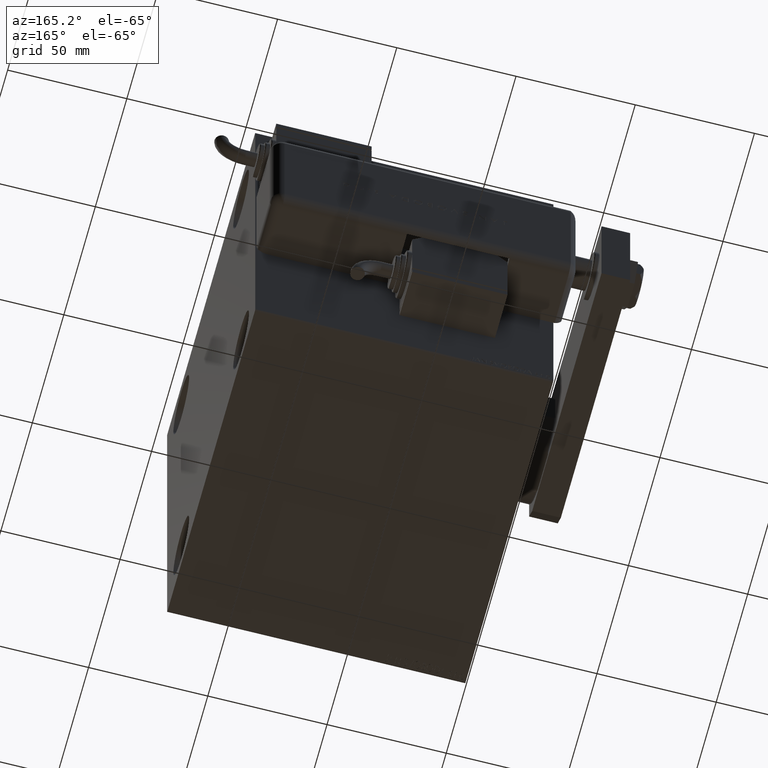
[diagram: clean part render]
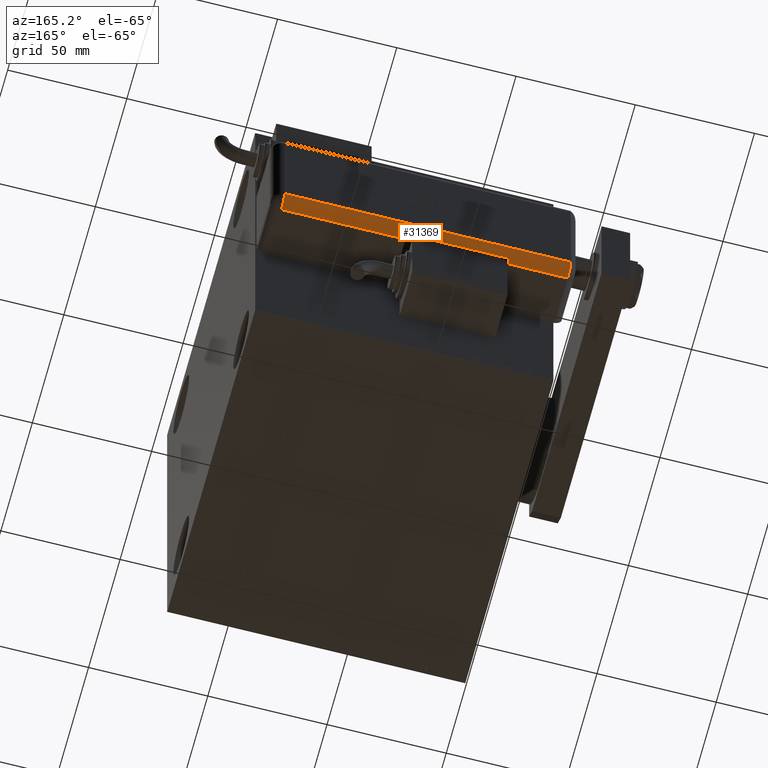
[diagram: same view with one face highlighted and labeled with its STEP entity id]
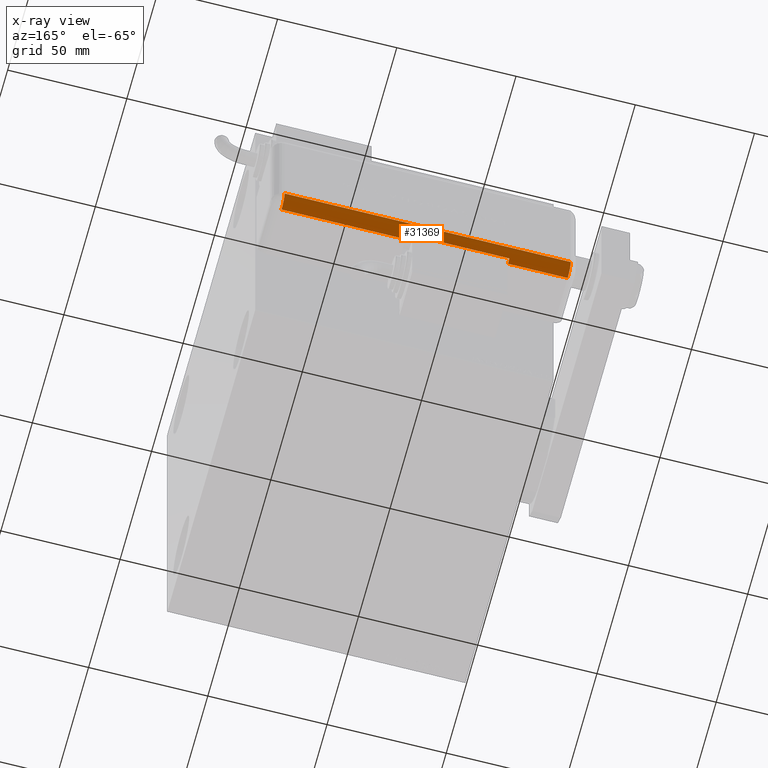
[diagram: x-ray of the same camera — body ghosted, the highlighted face saturated]
A machine part, auxiliary view. The second image highlights one B-rep face of the part: STEP entity #31369.
The next image is the same camera in x-ray: the body ghosted, the highlighted face saturated — about 0% of this face is hidden behind the body in this view.
In plain terms, the highlighted cylindrical surface (edge-blend (fillet) strip) has radius 5 mm, axis along (1, -0, -0).
Its self-contained STEP definition (entity closure, byte-faithful):
#694 = DIRECTION ( 'NONE',  ( 0.000000000000000000, 0.000000000000000000, -1.000000000000000000 ) ) ;
#963 = CARTESIAN_POINT ( 'NONE',  ( -28.99999999999999645, 20.79999999999998295, 100.0000000000000000 ) ) ;
#1087 = EDGE_CURVE ( 'NONE', #10029, #29047, #46569, .T. ) ;
#1595 = CYLINDRICAL_SURFACE ( 'NONE', #20064, 5.000000000000000888 ) ;
#1942 = DIRECTION ( 'NONE',  ( 0.000000000000000000, 0.000000000000000000, -1.000000000000000000 ) ) ;
#3087 = AXIS2_PLACEMENT_3D ( 'NONE', #36987, #46371, #4041 ) ;
#3187 = ORIENTED_EDGE ( 'NONE', *, *, #31574, .F. ) ;
#3629 = ORIENTED_EDGE ( 'NONE', *, *, #15456, .F. ) ;
#4041 = DIRECTION ( 'NONE',  ( -1.000000000000000000, 4.163336342344336238E-15, 0.000000000000000000 ) ) ;
#4349 = EDGE_CURVE ( 'NONE', #29047, #7755, #11030, .T. ) ;
#5246 = FACE_OUTER_BOUND ( 'NONE', #57059, .T. ) ;
#5325 = CARTESIAN_POINT ( 'NONE',  ( -28.99999999999999645, 20.79999999999998295, 125.0000000000000000 ) ) ;
#5756 = CARTESIAN_POINT ( 'NONE',  ( -28.48998886412872267, 22.99999999999998934, 125.0000000000000000 ) ) ;
#5791 = DIRECTION ( 'NONE',  ( -0.000000000000000000, -0.000000000000000000, 1.000000000000000000 ) ) ;
#5900 = CARTESIAN_POINT ( 'NONE',  ( -23.99999999999999645, 20.79999999999998295, 5.000000000000004441 ) ) ;
#6143 = CARTESIAN_POINT ( 'NONE',  ( -23.99999999999999645, 20.79999999999998295, 125.0000000000000000 ) ) ;
#6467 = CARTESIAN_POINT ( 'NONE',  ( -28.48998886412872267, 22.99999999999998934, 100.0000000000000000 ) ) ;
#6686 = DIRECTION ( 'NONE',  ( -1.000000000000000000, 0.000000000000000000, 0.000000000000000000 ) ) ;
#7755 = VERTEX_POINT ( 'NONE', #49925 ) ;
#10029 = VERTEX_POINT ( 'NONE', #20239 ) ;
#10334 = ORIENTED_EDGE ( 'NONE', *, *, #30082, .T. ) ;
#10633 = ORIENTED_EDGE ( 'NONE', *, *, #1087, .F. ) ;
#11030 = LINE ( 'NONE', #51845, #43803 ) ;
#14846 = DIRECTION ( 'NONE',  ( 0.000000000000000000, 0.000000000000000000, -1.000000000000000000 ) ) ;
#14949 = VECTOR ( 'NONE', #22868, 1000.000000000000000 ) ;
#15456 = EDGE_CURVE ( 'NONE', #49367, #20373, #29340, .T. ) ;
#16169 = AXIS2_PLACEMENT_3D ( 'NONE', #17007, #34236, #35418 ) ;
#17007 = CARTESIAN_POINT ( 'NONE',  ( -23.99999999999999645, 20.79999999999998295, 100.0000000000000000 ) ) ;
#20064 = AXIS2_PLACEMENT_3D ( 'NONE', #6143, #694, #42415 ) ;
#20239 = CARTESIAN_POINT ( 'NONE',  ( -28.48998886412872267, 22.99999999999998934, 57.00000000000000711 ) ) ;
#20373 = VERTEX_POINT ( 'NONE', #33075 ) ;
#21281 = VECTOR ( 'NONE', #14846, 1000.000000000000000 ) ;
#21905 = DIRECTION ( 'NONE',  ( -0.000000000000000000, -0.000000000000000000, 1.000000000000000000 ) ) ;
#22868 = DIRECTION ( 'NONE',  ( 0.000000000000000000, 0.000000000000000000, -1.000000000000000000 ) ) ;
#24336 = DIRECTION ( 'NONE',  ( -0.000000000000000000, -0.000000000000000000, 1.000000000000000000 ) ) ;
#24750 = ORIENTED_EDGE ( 'NONE', *, *, #56971, .F. ) ;
#25413 = ORIENTED_EDGE ( 'NONE', *, *, #4349, .F. ) ;
#26706 = VERTEX_POINT ( 'NONE', #963 ) ;
#27774 = CIRCLE ( 'NONE', #16169, 5.000000000000000888 ) ;
#27861 = CIRCLE ( 'NONE', #31716, 5.000000000000000888 ) ;
#28770 = CARTESIAN_POINT ( 'NONE',  ( -23.99999999999999645, 20.79999999999998295, 125.0000000000000000 ) ) ;
#29047 = VERTEX_POINT ( 'NONE', #32705 ) ;
#29340 = CIRCLE ( 'NONE', #58289, 5.000000000000000888 ) ;
#30082 = EDGE_CURVE ( 'NONE', #33601, #7755, #27861, .T. ) ;
#31298 = EDGE_CURVE ( 'NONE', #33601, #49367, #49707, .T. ) ;
#31369 = ADVANCED_FACE ( 'NONE', ( #5246 ), #1595, .T. ) ;
#31574 = EDGE_CURVE ( 'NONE', #26706, #53284, #27774, .T. ) ;
#31716 = AXIS2_PLACEMENT_3D ( 'NONE', #5900, #24336, #42779 ) ;
#32136 = CARTESIAN_POINT ( 'NONE',  ( -23.99999999999999645, 25.79999999999998295, 125.0000000000000000 ) ) ;
#32705 = CARTESIAN_POINT ( 'NONE',  ( -28.99999999999999645, 20.79999999999998295, 57.00000000000000711 ) ) ;
#32723 = CARTESIAN_POINT ( 'NONE',  ( -23.99999999999999645, 25.79999999999998295, 5.000000000000004441 ) ) ;
#33075 = CARTESIAN_POINT ( 'NONE',  ( -28.99999999999999645, 20.79999999999998295, 125.0000000000000000 ) ) ;
#33601 = VERTEX_POINT ( 'NONE', #32723 ) ;
#34236 = DIRECTION ( 'NONE',  ( 0.000000000000000000, -0.000000000000000000, -1.000000000000000000 ) ) ;
#35418 = DIRECTION ( 'NONE',  ( 1.000000000000000000, 0.000000000000000000, 0.000000000000000000 ) ) ;
#36987 = CARTESIAN_POINT ( 'NONE',  ( -23.99999999999999645, 20.79999999999998295, 57.00000000000000711 ) ) ;
#37509 = ORIENTED_EDGE ( 'NONE', *, *, #45901, .F. ) ;
#42415 = DIRECTION ( 'NONE',  ( -1.000000000000000000, 0.000000000000000000, 0.000000000000000000 ) ) ;
#42497 = LINE ( 'NONE', #5325, #14949 ) ;
#42779 = DIRECTION ( 'NONE',  ( -1.000000000000000000, 0.000000000000000000, 0.000000000000000000 ) ) ;
#43803 = VECTOR ( 'NONE', #1942, 1000.000000000000000 ) ;
#45901 = EDGE_CURVE ( 'NONE', #53284, #10029, #56256, .T. ) ;
#46371 = DIRECTION ( 'NONE',  ( -0.000000000000000000, -0.000000000000000000, 1.000000000000000000 ) ) ;
#46569 = CIRCLE ( 'NONE', #3087, 5.000000000000000888 ) ;
#49367 = VERTEX_POINT ( 'NONE', #57571 ) ;
#49707 = LINE ( 'NONE', #32136, #57692 ) ;
#49925 = CARTESIAN_POINT ( 'NONE',  ( -28.99999999999999645, 20.79999999999998295, 5.000000000000004441 ) ) ;
#51845 = CARTESIAN_POINT ( 'NONE',  ( -28.99999999999999645, 20.79999999999998295, 125.0000000000000000 ) ) ;
#53284 = VERTEX_POINT ( 'NONE', #6467 ) ;
#56256 = LINE ( 'NONE', #5756, #21281 ) ;
#56971 = EDGE_CURVE ( 'NONE', #20373, #26706, #42497, .T. ) ;
#57059 = EDGE_LOOP ( 'NONE', ( #10633, #37509, #3187, #24750, #3629, #58455, #10334, #25413 ) ) ;
#57571 = CARTESIAN_POINT ( 'NONE',  ( -23.99999999999999645, 25.79999999999998295, 125.0000000000000000 ) ) ;
#57692 = VECTOR ( 'NONE', #21905, 1000.000000000000000 ) ;
#58289 = AXIS2_PLACEMENT_3D ( 'NONE', #28770, #5791, #6686 ) ;
#58455 = ORIENTED_EDGE ( 'NONE', *, *, #31298, .F. ) ;